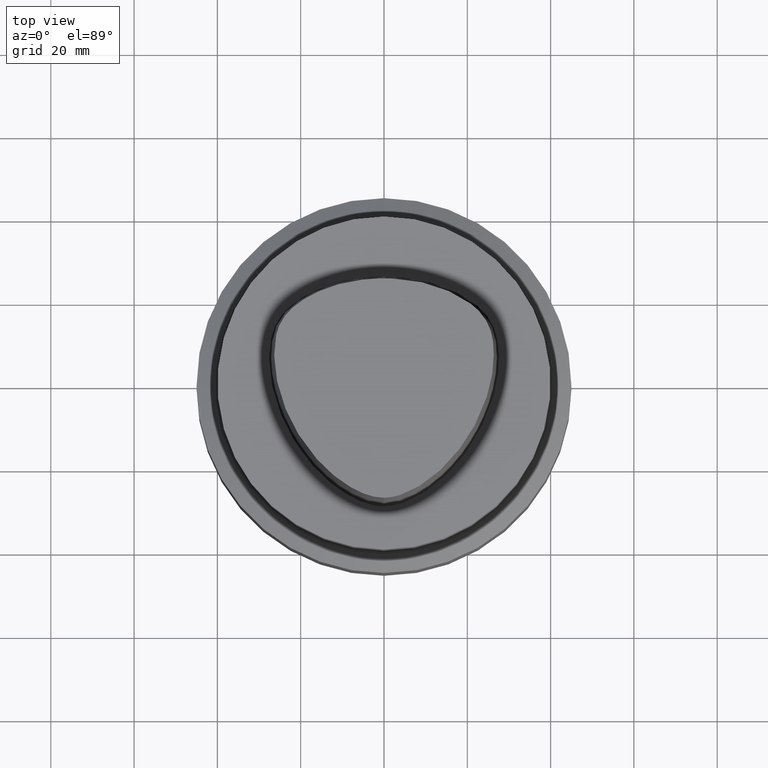
[diagram: clean part render]
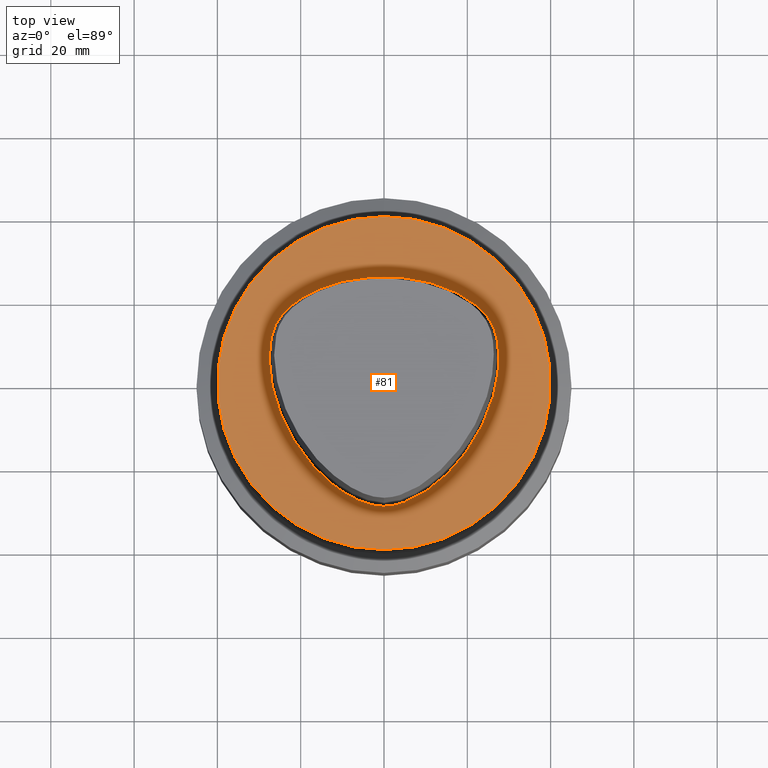
[diagram: same view with one face highlighted and labeled with its STEP entity id]
A machine part, top view. The second image highlights one B-rep face of the part: STEP entity #81.
In plain terms, the highlighted planar face has unit normal (-0, -0, 1).
Its self-contained STEP definition (entity closure, byte-faithful):
#81=ADVANCED_FACE('',(#99,#100),#101,.T.);
#99=FACE_BOUND('',#503,.T.);
#100=FACE_OUTER_BOUND('',#504,.T.);
#101=PLANE('',#505);
#503=EDGE_LOOP('',(#536));
#504=EDGE_LOOP('',(#537));
#505=AXIS2_PLACEMENT_3D('',#538,#539,#540);
#536=ORIENTED_EDGE('',*,*,#547,.T.);
#537=ORIENTED_EDGE('',*,*,#553,.F.);
#538=CARTESIAN_POINT('',(-2.46472810562901E-031,19.99625,2.44883435574503E-015));
#539=DIRECTION('',(-6.12323399573677E-017,-1.22464679914735E-016,1.0));
#540=DIRECTION('',(1.23259516440783E-032,-1.0,-1.22464679914735E-016));
#547=EDGE_CURVE('',#556,#556,#557,.T.);
#553=EDGE_CURVE('',#567,#567,#568,.T.);
#556=VERTEX_POINT('',#619);
#557=B_SPLINE_CURVE_WITH_KNOTS('',3,(#620,#621,#622,#623,#624,#625,#626,#627,#628,#629,#630,#631,#632,#633,#634,#635,#636,#637,#638,#639,#640,#641,#642,#643,#644,#645,#646,#647,#648,#649,#650,#651,#652,#653,#654,#655,#656,#657,#658,#659,#660,#661,#662,#663,#664,#665,#666,#667,#668,#669,#670,#671,#672,#673,#674,#675,#676,#677,#678,#679,#680,#681,#682,#683,#684,#685,#686,#687,#688,#689,#690,#691,#692,#693,#694,#695,#696,#697,#698,#699,#700,#701,#702,#703,#704,#705,#706,#707,#708,#709,#710,#711,#712,#713,#714,#715),.UNSPECIFIED.,.T.,.F.,(4,2,2,2,2,2,2,2,2,2,2,2,2,2,2,2,2,2,2,2,2,2,2,2,2,2,2,2,2,2,2,2,2,2,2,2,2,2,2,2,2,2,2,2,2,2,2,4),(0.0,0.023266238907101,0.04642321916497,0.069037428304488,0.090947532765319,0.112181511979892,0.132874081906891,0.153211623090307,0.173403899120381,0.193668982465133,0.214220857423359,0.235256169578881,0.256931182005521,0.279316100520023,0.302327812922285,0.325615908452607,0.348863915862354,0.37211588966546,0.394944167045003,0.417090524637617,0.438530318382332,0.459402579310312,0.479837360161492,0.499920279645309,0.520144802150986,0.540579089622822,0.561451608096301,0.58289068047617,0.605037731022285,0.627865851215146,0.651117829762372,0.674365843809947,0.697654002942623,0.720665464887439,0.743050887635834,0.764725116248188,0.7857605656535,0.806312370379442,0.826577482765943,0.846769695561797,0.867106984936976,0.887799904832214,0.90903349107026,0.930943318867528,0.953557807681498,0.97671479981417,0.999990517903696,1.0),.UNSPECIFIED.);
#567=VERTEX_POINT('',#728);
#568=CIRCLE('',#729,39.9925);
#619=CARTESIAN_POINT('',(-0.00164083163227662,-29.5748662817043,-1.71094801434501E-031));
#620=CARTESIAN_POINT('',(-0.00164083163227662,-29.5748662817043,-1.71094801434501E-031));
#621=CARTESIAN_POINT('',(-1.34367882227266,-29.5936106625075,-3.82104500966428E-031));
#622=CARTESIAN_POINT('',(-2.68740420004953,-29.3328889282446,-2.71170936169723E-031));
#623=CARTESIAN_POINT('',(-5.26074084631931,-28.5400905705423,2.46519032881566E-031));
#624=CARTESIAN_POINT('',(-6.49085836398545,-28.0092939838118,-9.86076131526265E-032));
#625=CARTESIAN_POINT('',(-8.82856305941638,-26.7799538548108,9.86076131526265E-032));
#626=CARTESIAN_POINT('',(-9.93834640062538,-26.0856337015913,-9.86076131526265E-032));
#627=CARTESIAN_POINT('',(-12.0309823905868,-24.5926315357893,-1.97215226305253E-031));
#628=CARTESIAN_POINT('',(-13.0167112443809,-23.7978719690822,-2.95822839457879E-031));
#629=CARTESIAN_POINT('',(-14.8727265816832,-22.1381942733804,0.0));
#630=CARTESIAN_POINT('',(-15.7456368168333,-21.2761980066665,0.0));
#631=CARTESIAN_POINT('',(-17.3879214183881,-19.499427365145,1.97215226305253E-031));
#632=CARTESIAN_POINT('',(-18.1593681806271,-18.5865590846551,1.97215226305253E-031));
#633=CARTESIAN_POINT('',(-19.6094862833069,-16.7150017171437,0.0));
#634=CARTESIAN_POINT('',(-20.289522306802,-15.7573675155919,1.97215226305253E-031));
#635=CARTESIAN_POINT('',(-21.5656702578572,-13.797506639011,0.0));
#636=CARTESIAN_POINT('',(-22.1623469365906,-12.7956473319474,-1.97215226305253E-031));
#637=CARTESIAN_POINT('',(-23.2752180864568,-10.74347032584,-1.97215226305253E-031));
#638=CARTESIAN_POINT('',(-23.7911146053519,-9.69299092556668,-1.97215226305253E-031));
#639=CARTESIAN_POINT('',(-24.7420870094788,-7.5381981687329,-1.97215226305253E-031));
#640=CARTESIAN_POINT('',(-25.1759157970854,-6.43333334291294,-1.97215226305253E-031));
#641=CARTESIAN_POINT('',(-25.9554404448504,-4.16361692512216,-1.97215226305253E-031));
#642=CARTESIAN_POINT('',(-26.2988231270793,-2.99796562277024,0.0));
#643=CARTESIAN_POINT('',(-26.8823734669132,-0.603263018451638,0.0));
#644=CARTESIAN_POINT('',(-27.1190847093475,0.626638314508983,0.0));
#645=CARTESIAN_POINT('',(-27.4609002561416,3.14696645819561,0.0));
#646=CARTESIAN_POINT('',(-27.5614402101816,4.43805628657726,0.0));
#647=CARTESIAN_POINT('',(-27.5863066124947,7.05787796805235,0.0));
#648=CARTESIAN_POINT('',(-27.5056201279308,8.38665155837627,0.0));
#649=CARTESIAN_POINT('',(-27.0954571151674,11.0352567744664,0.0));
#650=CARTESIAN_POINT('',(-26.7630041230867,12.3547893226748,0.0));
#651=CARTESIAN_POINT('',(-25.6724521861925,14.8124702450063,0.0));
#652=CARTESIAN_POINT('',(-24.9150869333233,15.9509269437304,0.0));
#653=CARTESIAN_POINT('',(-23.1210312548435,17.9569470053759,0.0));
#654=CARTESIAN_POINT('',(-22.0842931950003,18.8244641174544,0.0));
#655=CARTESIAN_POINT('',(-19.908909483221,20.3616348354058,0.0));
#656=CARTESIAN_POINT('',(-18.7724650249979,21.0346058511353,0.0));
#657=CARTESIAN_POINT('',(-16.4567596515209,22.2069945116741,0.0));
#658=CARTESIAN_POINT('',(-15.2797918086139,22.7109959882008,0.0));
#659=CARTESIAN_POINT('',(-12.9207332535993,23.5857253409895,9.86076131526265E-032));
#660=CARTESIAN_POINT('',(-11.740003999522,23.9601922020954,9.86076131526265E-032));
#661=CARTESIAN_POINT('',(-9.37648722149752,24.5736332451035,-9.86076131526265E-032));
#662=CARTESIAN_POINT('',(-8.19458153545295,24.8159316598014,0.0));
#663=CARTESIAN_POINT('',(-5.83850844197054,25.1759510165757,-9.86076131526265E-032));
#664=CARTESIAN_POINT('',(-4.66469807187812,25.2961766417791,-1.4791141972894E-031));
#665=CARTESIAN_POINT('',(-2.3312699890678,25.4544662638825,4.93038065763132E-032));
#666=CARTESIAN_POINT('',(-1.17175591409117,25.4939093361241,1.72563323017096E-031));
#667=CARTESIAN_POINT('',(1.15545266416126,25.494540252471,1.10933564796705E-031));
#668=CARTESIAN_POINT('',(2.32314720120702,25.4551743644366,1.4791141972894E-031));
#669=CARTESIAN_POINT('',(4.66463729586072,25.2960231489021,9.86076131526265E-032));
#670=CARTESIAN_POINT('',(5.83837051795068,25.1754079607774,9.86076131526265E-032));
#671=CARTESIAN_POINT('',(8.19448404193754,24.8154739309331,0.0));
#672=CARTESIAN_POINT('',(9.37650995847748,24.573664860466,-2.95822839457879E-031));
#673=CARTESIAN_POINT('',(11.7399573199399,23.9602471092435,-9.86076131526265E-032));
#674=CARTESIAN_POINT('',(12.9204914744584,23.585293366417,0.0));
#675=CARTESIAN_POINT('',(15.2795848008339,22.7105342386106,-3.94430452610506E-031));
#676=CARTESIAN_POINT('',(16.4567913745813,22.2070147920283,3.94430452610506E-031));
#677=CARTESIAN_POINT('',(18.7726283764867,21.034903794727,-1.97215226305253E-031));
#678=CARTESIAN_POINT('',(19.9089592260428,20.3617120962174,-1.97215226305253E-031));
#679=CARTESIAN_POINT('',(22.0842485191724,18.8243782496281,0.0));
#680=CARTESIAN_POINT('',(23.12100726512,17.9569227334155,-3.94430452610506E-031));
#681=CARTESIAN_POINT('',(24.9151158158093,15.9509545348034,1.97215226305253E-031));
#682=CARTESIAN_POINT('',(25.6725132300842,14.8124880933032,-1.97215226305253E-031));
#683=CARTESIAN_POINT('',(26.762962807837,12.3547780213407,0.0));
#684=CARTESIAN_POINT('',(27.0952799458876,11.0352256163986,1.97215226305253E-031));
#685=CARTESIAN_POINT('',(27.5055512569286,8.38661456077751,-1.97215226305253E-031));
#686=CARTESIAN_POINT('',(27.5864807188881,7.05785513793989,0.0));
#687=CARTESIAN_POINT('',(27.561392778196,4.43806075995119,1.97215226305253E-031));
#688=CARTESIAN_POINT('',(27.4604014662893,3.14698296007576,-1.97215226305253E-031));
#689=CARTESIAN_POINT('',(27.118611303309,0.626629008731155,0.0));
#690=CARTESIAN_POINT('',(26.8823561320654,-0.603307445442227,0.0));
#691=CARTESIAN_POINT('',(26.2990081949749,-2.99798519998627,0.0));
#692=CARTESIAN_POINT('',(25.9553872246104,-4.1635796118539,0.0));
#693=CARTESIAN_POINT('',(25.1758761789259,-6.43333881304993,0.0));
#694=CARTESIAN_POINT('',(24.7422891917365,-7.53829982079647,0.0));
#695=CARTESIAN_POINT('',(23.7911396305002,-9.69297644170626,0.0));
#696=CARTESIAN_POINT('',(23.2748328680553,-10.7432476936092,0.0));
#697=CARTESIAN_POINT('',(22.1620073500161,-12.7954883285933,0.0));
#698=CARTESIAN_POINT('',(21.5657838219206,-13.797617876684,0.0));
#699=CARTESIAN_POINT('',(20.289692338909,-15.7574429608729,0.0));
#700=CARTESIAN_POINT('',(19.6092541949823,-16.7147675174567,0.0));
#701=CARTESIAN_POINT('',(18.1590928335012,-18.5863673368761,0.0));
#702=CARTESIAN_POINT('',(17.3880163872248,-19.4995970803095,0.0));
#703=CARTESIAN_POINT('',(15.7458756068693,-21.2763690689372,0.0));
#704=CARTESIAN_POINT('',(14.8727251768577,-22.1379896342994,0.0));
#705=CARTESIAN_POINT('',(13.0164986146837,-23.7977451564491,0.0));
#706=CARTESIAN_POINT('',(12.0308072155323,-24.5929843178023,9.86076131526265E-032));
#707=CARTESIAN_POINT('',(9.93827470804141,-26.0847683712151,9.86076131526265E-032));
#708=CARTESIAN_POINT('',(8.82855678381542,-26.7773164869684,9.86076131526265E-032));
#709=CARTESIAN_POINT('',(6.49089493491194,-28.0120447965454,0.0));
#710=CARTESIAN_POINT('',(5.26075348594719,-28.5502192368694,-1.4791141972894E-031));
#711=CARTESIAN_POINT('',(2.68687274960978,-29.3229139791992,9.86076131526265E-032));
#712=CARTESIAN_POINT('',(1.34258338152267,-29.5558632991381,0.0));
#713=CARTESIAN_POINT('',(-0.000546943594638622,-29.5748509568372,-1.12155326605175E-031));
#714=CARTESIAN_POINT('',(-0.00109388747332262,-29.5748586424797,-1.82096676241813E-031));
#715=CARTESIAN_POINT('',(-0.00164083163225662,-29.5748662817043,2.64694996731721E-031));
#728=CARTESIAN_POINT('',(-4.92945621125802E-031,39.9925,4.89766871149005E-015));
#729=AXIS2_PLACEMENT_3D('',#742,#743,#744);
#742=CARTESIAN_POINT('',(0.0,0.0,0.0));
#743=DIRECTION('',(6.12323399573677E-017,1.22464679914735E-016,-1.0));
#744=DIRECTION('',(-1.23259516440783E-032,1.0,1.22464679914735E-016));